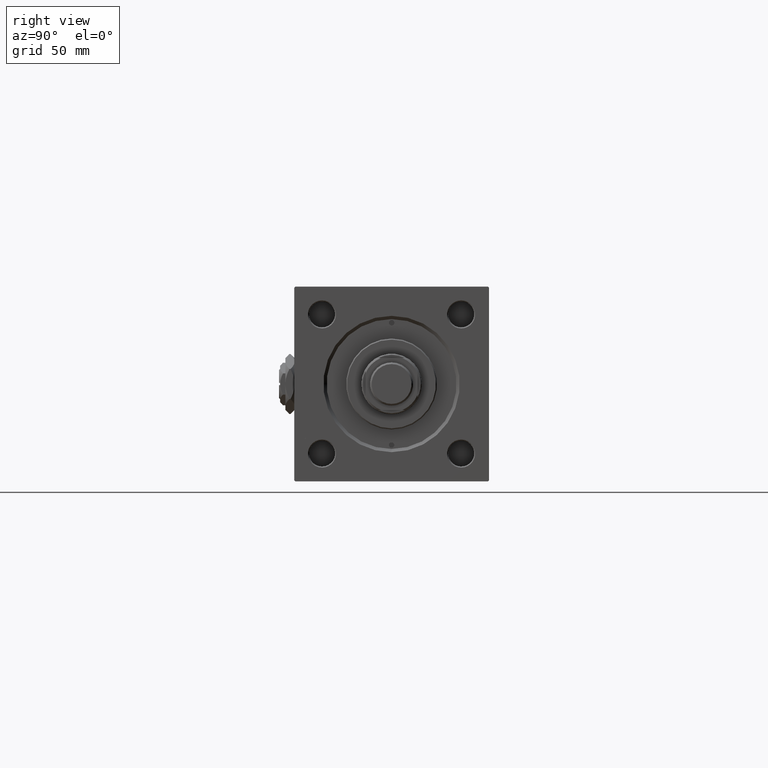
[diagram: clean part render]
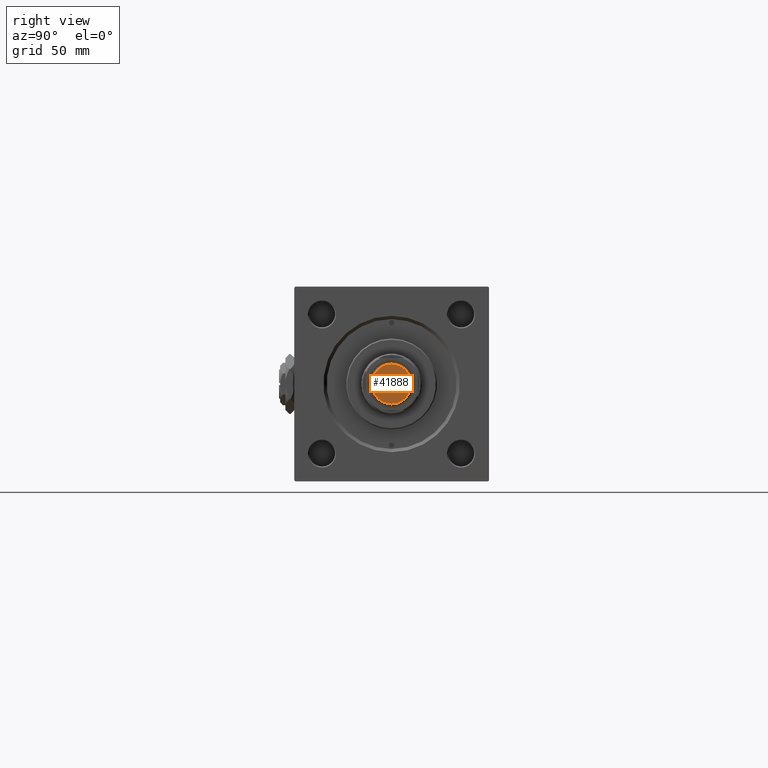
[diagram: same view with one face highlighted and labeled with its STEP entity id]
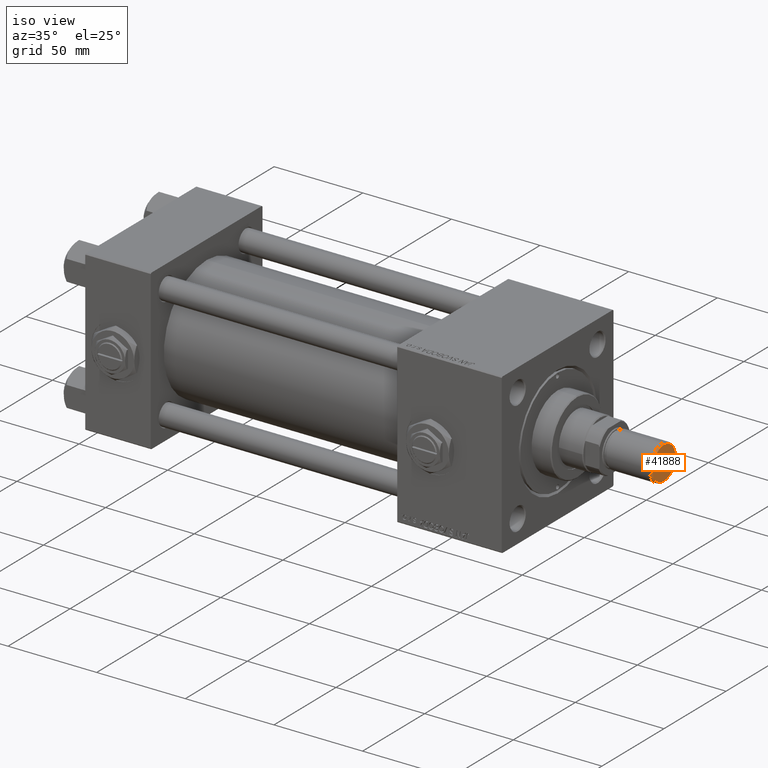
[diagram: same view with one face highlighted and labeled with its STEP entity id]
A machine part, right view. The second image highlights one B-rep face of the part: STEP entity #41888.
A second angle (iso view) of the same face is appended — the face is thin or edge-on in the first view.
In plain terms, the highlighted planar face has unit normal (-1, 0, 0).
Its self-contained STEP definition (entity closure, byte-faithful):
#1560 = CIRCLE ( 'NONE', #38285, 9.199999999999992184 ) ;
#3886 = CIRCLE ( 'NONE', #10720, 9.199999999999992184 ) ;
#7538 = DIRECTION ( 'NONE',  ( -0.000000000000000000, -0.000000000000000000, -1.000000000000000000 ) ) ;
#8071 = DIRECTION ( 'NONE',  ( 1.000000000000000000, 0.000000000000000000, 0.000000000000000000 ) ) ;
#10720 = AXIS2_PLACEMENT_3D ( 'NONE', #42061, #37803, #47068 ) ;
#11228 = VERTEX_POINT ( 'NONE', #32545 ) ;
#13524 = AXIS2_PLACEMENT_3D ( 'NONE', #30802, #23056, #51668 ) ;
#13572 = ORIENTED_EDGE ( 'NONE', *, *, #32390, .T. ) ;
#14242 = PLANE ( 'NONE',  #13524 ) ;
#23056 = DIRECTION ( 'NONE',  ( 0.000000000000000000, 0.000000000000000000, 1.000000000000000000 ) ) ;
#23643 = CARTESIAN_POINT ( 'NONE',  ( -9.199999999999992184, 1.175660927181458645E-15, 0.000000000000000000 ) ) ;
#24124 = CARTESIAN_POINT ( 'NONE',  ( 0.000000000000000000, 0.000000000000000000, 0.000000000000000000 ) ) ;
#26299 = ORIENTED_EDGE ( 'NONE', *, *, #42631, .T. ) ;
#30320 = VERTEX_POINT ( 'NONE', #23643 ) ;
#30802 = CARTESIAN_POINT ( 'NONE',  ( 0.000000000000000000, 0.000000000000000000, 0.000000000000000000 ) ) ;
#32390 = EDGE_CURVE ( 'NONE', #30320, #11228, #3886, .T. ) ;
#32545 = CARTESIAN_POINT ( 'NONE',  ( 9.199999999999992184, 0.000000000000000000, 0.000000000000000000 ) ) ;
#34483 = EDGE_LOOP ( 'NONE', ( #26299, #13572 ) ) ;
#37803 = DIRECTION ( 'NONE',  ( -0.000000000000000000, -0.000000000000000000, -1.000000000000000000 ) ) ;
#38285 = AXIS2_PLACEMENT_3D ( 'NONE', #24124, #7538, #8071 ) ;
#41888 = ADVANCED_FACE ( 'NONE', ( #50887 ), #14242, .F. ) ;
#42061 = CARTESIAN_POINT ( 'NONE',  ( 0.000000000000000000, 0.000000000000000000, 0.000000000000000000 ) ) ;
#42631 = EDGE_CURVE ( 'NONE', #11228, #30320, #1560, .T. ) ;
#47068 = DIRECTION ( 'NONE',  ( 1.000000000000000000, 0.000000000000000000, 0.000000000000000000 ) ) ;
#50887 = FACE_OUTER_BOUND ( 'NONE', #34483, .T. ) ;
#51668 = DIRECTION ( 'NONE',  ( 1.000000000000000000, 0.000000000000000000, -0.000000000000000000 ) ) ;